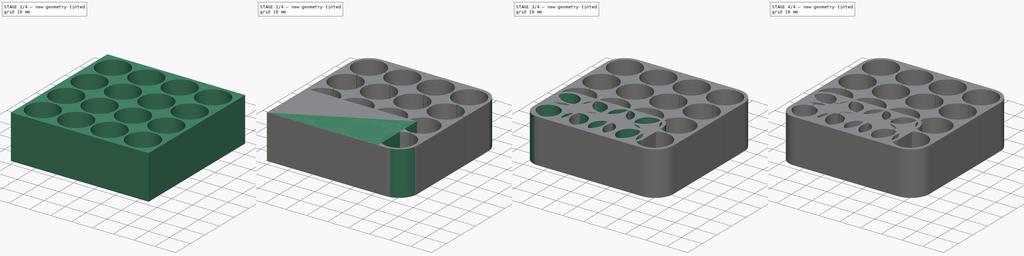
[diagram: build sequence overview — one tinted view per stage of 4, left to right]
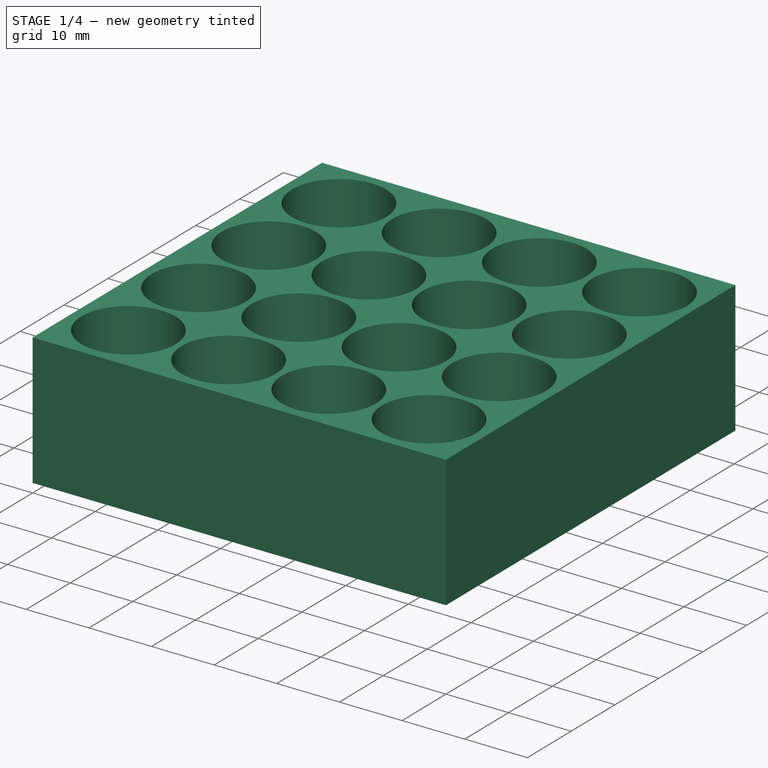
[diagram: stage 1 of 4 — iso view after this stage's code; geometry added in this stage tinted green]
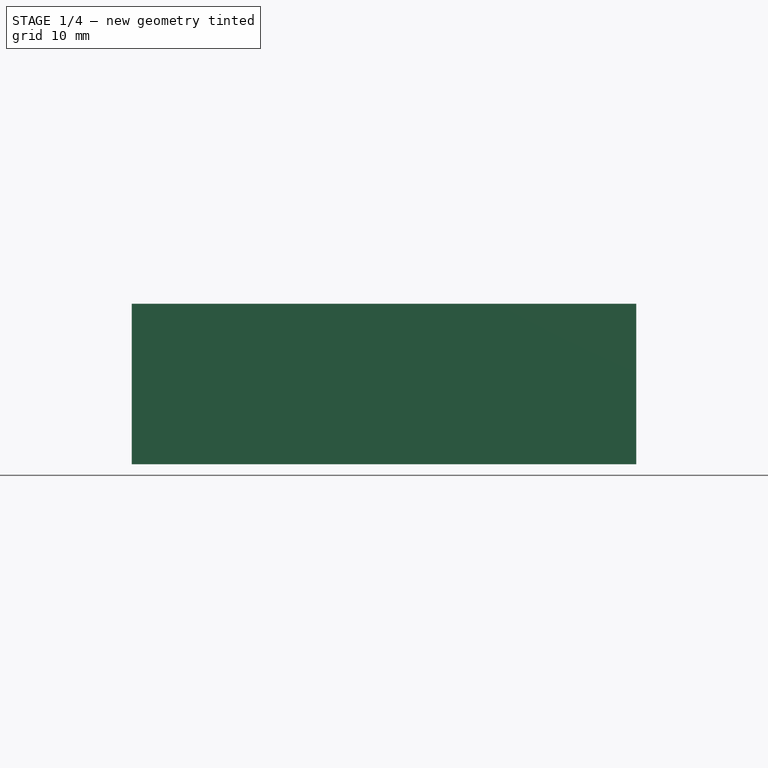
[diagram: stage 1 of 4 — front view after this stage's code; geometry added in this stage tinted green]
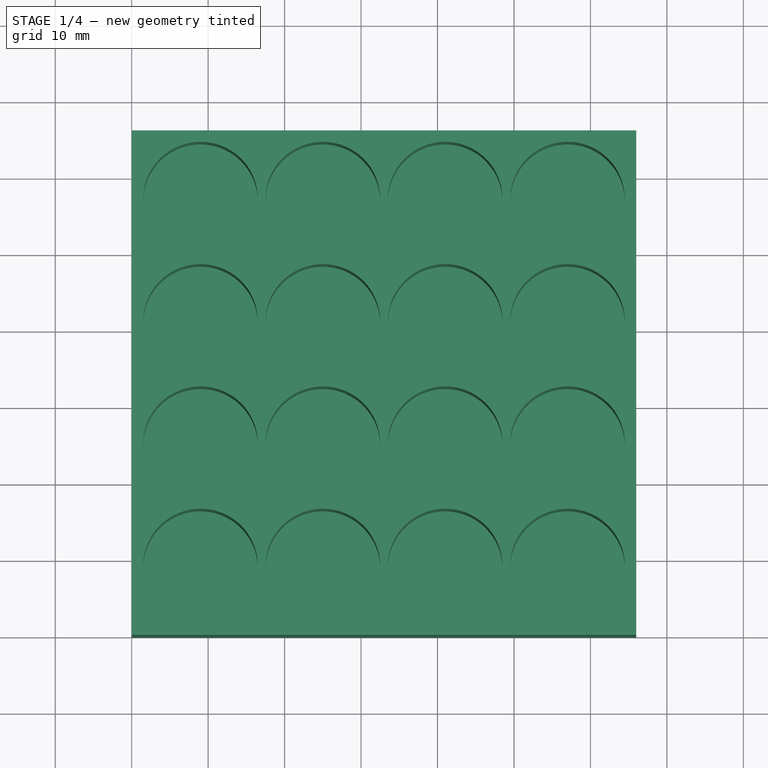
[diagram: stage 1 of 4 — top view after this stage's code; geometry added in this stage tinted green]
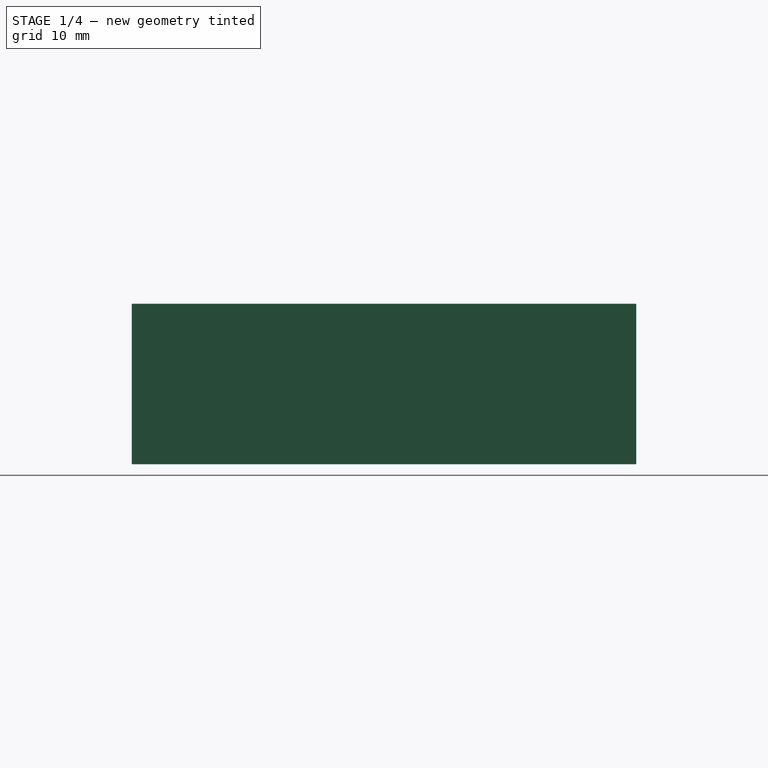
[diagram: stage 1 of 4 — right view after this stage's code; geometry added in this stage tinted green]
FCSTD DOCUMENT  (FreeCAD 2022.111R28429 (Git))
Label: battery stand
License: All rights reserved
LicenseURL: http://en.wikipedia.org/wiki/All_rights_reserved
objects: Sketcher::SketchObject×6, PartDesign::Pocket×5, PartDesign::LinearPattern×3, PartDesign::SubShapeBinder×2, PartDesign::Pad×2, PartDesign::Fillet×2, PartDesign::Body×2, Spreadsheet::Sheet×1, PartDesign::MultiTransform×1
note: 49 computed .brp shape members not serialized (recipe doc carries the construction recipe); baked Part::Feature solids carry a one-line shape summary decoded from their .brp

FEATURE [PartDesign::Body] Body  label="8 x AAA"
  AutoGroupSolids = false
  ExportMode = 0
  Group = -> [Sketch,Pad,Binder,Pocket,Fillet,Binder001,Sketch001,Pocket001,LinearPattern,Sketch002,Pocket002]
  Origin = -> Origin
  Tip = -> Pocket002
  TreeRank = 12
  _ExportChildren = -> [Sketch,Pad,Pocket,Fillet,Pocket001,LinearPattern,Pocket002]
  _GroupVersion = 1
FEATURE [Sketcher::SketchObject] Sketch003
  FullyConstrained = false
  MapMode = 2
  TreeRank = 38
  expr: Constraints[10] = <<dim>>.battery_diameter * <<dim>>.num_x + <<dim>>.spacing * (<<dim>>.num_x - 1) + 2 * <<dim>>.corner_distance - <<dim>>.battery_diameter
  expr: Constraints[11] = <<dim>>.battery_diameter * <<dim>>.num_y + <<dim>>.spacing * (<<dim>>.num_y - 1) + 2 * <<dim>>.corner_distance - <<dim>>.battery_diameter
  sketch-geometry (5):
    g0: LineSegment StartX=0 StartY=0 StartZ=0 EndX=66 EndY=0 EndZ=0
    g1: LineSegment StartX=66 StartY=0 StartZ=0 EndX=66 EndY=66 EndZ=0
    g2: LineSegment StartX=66 StartY=66 StartZ=0 EndX=0 EndY=66 EndZ=0
    g3: LineSegment StartX=0 StartY=66 StartZ=0 EndX=0 EndY=0 EndZ=0
    g4: Circle [constr] CenterX=10.8373 CenterY=10.6294 CenterZ=0 NormalX=0 NormalY=0 NormalZ=1 AngleXU=0 Radius=7.5
  constraints (12):
    c: Coincident(g0,g1)
    c: Coincident(g1,g2)
    c: Coincident(g2,g3)
    c: Coincident(g3,g0)
    c: Horizontal(g0)
    c: Horizontal(g2)
    c: Vertical(g1)
    c: Vertical(g3)
    c: Coincident(g0,g-1)
    c: Diameter(g4) = 15
    c: DistanceX(g0,g0) = 66
    c: DistanceY(g3,g3) = 66
FEATURE [Spreadsheet::Sheet] Spreadsheet  label="dim"
  PythonMode = false
  ShowCells = 0
  TreeRank = 39
  cells = A1=battery_diameter; B1(battery_diameter)==15mm; A2=spacing; B2(spacing)==1mm; A3=corner_distance; B3(corner_distance)==9mm; A4=corner_fillet; B4(corner_fillet)==9mm; A5=height; B5(height)==20mm; A6=bottom; B6(bottom)==1mm; A7=num_x; B7(num_x)=4; A8=num_y; B8(num_y)=4; A9=split; B9(split)==0.25mm
FEATURE [PartDesign::Pad] Pad001
  ClaimChildren = false
  Direction = (1,1,1)
  Fit = 0
  FitJoin = 0
  InnerFit = 0
  InnerFitJoin = 0
  InnerTaperAngle = 0
  InnerTaperAngleRev = 0
  Length = 20
  Length2 = 1
  Linearize = true
  NewSolid = false
  Profile = -> Sketch003
  Refine = true
  Suppress = false
  TreeRank = 40
  Type = 4
  _ProfileBasedVersion = 1
  expr: Length = <<dim>>.height
  expr: Length2 = <<dim>>.bottom
FEATURE [Sketcher::SketchObject] Sketch004
  FullyConstrained = true
  MapMode = 5
  Support = -> [XY_Plane001]
  TreeRank = 41
  expr: Constraints[0] = <<dim>>.battery_diameter
  expr: Constraints[1] = <<dim>>.corner_distance
  expr: Constraints[2] = <<dim>>.corner_distance
  sketch-geometry (1):
    g0: Circle CenterX=9 CenterY=9 CenterZ=0 NormalX=0 NormalY=0 NormalZ=1 AngleXU=0 Radius=7.5
  constraints (3):
    c: Diameter(g0) = 15
    c: DistanceX(g-1,g0) = 9
    c: DistanceY(g0) = 9
FEATURE [PartDesign::Pocket] Pocket003
  BaseFeature = -> Pad001
  ClaimChildren = false
  Fit = 0
  FitJoin = 0
  InnerFit = 0
  InnerFitJoin = 0
  InnerTaperAngle = 0
  InnerTaperAngleRev = 0
  Length = 5
  Length2 = 100
  Linearize = true
  NewSolid = false
  Profile = -> Sketch004
  Refine = true
  Reversed = true
  Suppress = false
  TreeRank = 42
  Type = 1
  _ProfileBasedVersion = 1
FEATURE [PartDesign::LinearPattern] LinearPattern001
  CopyShape = false
  Direction = -> Sketch004 [H_Axis]
  Length = 48
  NewSolid = false
  Occurrences = 4
  ParallelTransform = true
  Refine = true
  SubTransform = true
  Suppress = false
  TreeRank = 44
  expr: Length = (<<dim>>.battery_diameter + <<dim>>.spacing) * (<<dim>>.num_x - 1)
  expr: Occurrences = <<dim>>.num_x
FEATURE [PartDesign::LinearPattern] LinearPattern002
  CopyShape = false
  Direction = -> Sketch004 [V_Axis]
  Length = 48
  NewSolid = false
  Occurrences = 4
  ParallelTransform = true
  Refine = true
  SubTransform = true
  Suppress = false
  TreeRank = 45
  expr: Length = (<<dim>>.battery_diameter + <<dim>>.spacing) * (<<dim>>.num_y - 1)
  expr: Occurrences = <<dim>>.num_y
FEATURE [PartDesign::MultiTransform] MultiTransform
  BaseFeature = -> Pocket003
  CopyShape = false
  NewSolid = false
  OriginalSubs = -> [Pocket003]
  Originals = -> [Pocket003]
  ParallelTransform = true
  Refine = true
  SubTransform = true
  Suppress = false
  Transformations = -> [LinearPattern001,LinearPattern002]
  TreeRank = 43
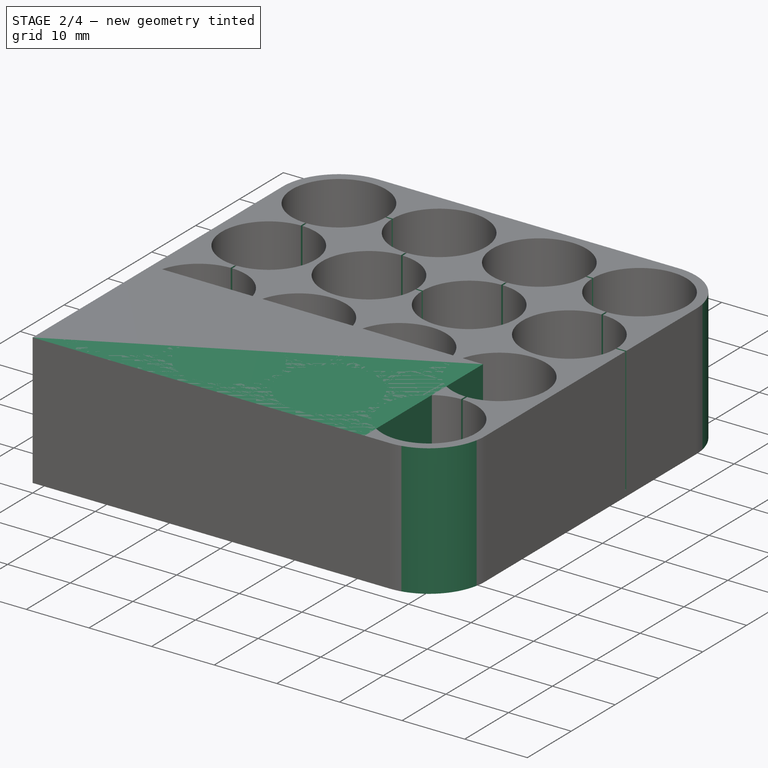
[diagram: stage 2 of 4 — iso view after this stage's code; geometry added in this stage tinted green]
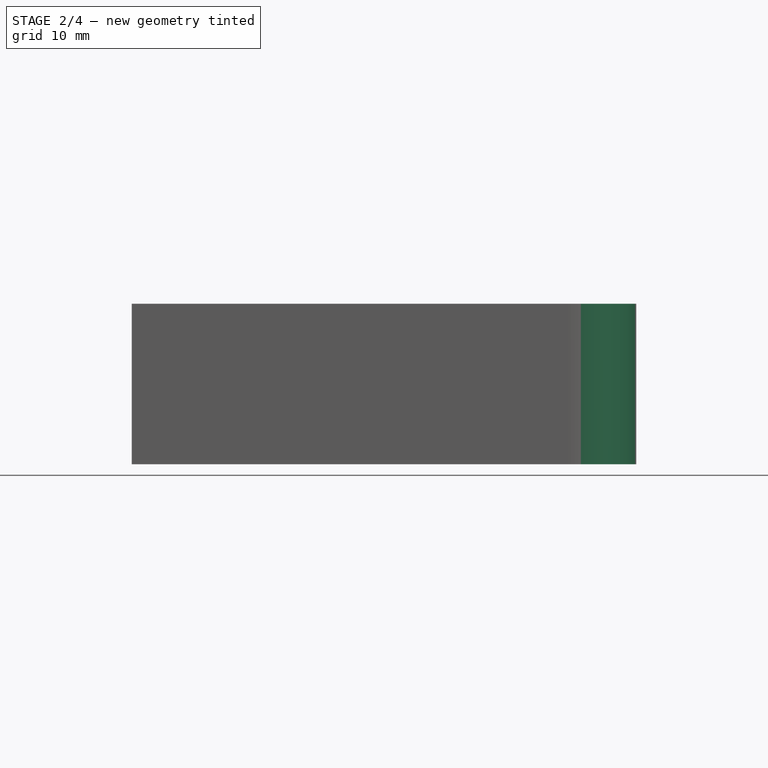
[diagram: stage 2 of 4 — front view after this stage's code; geometry added in this stage tinted green]
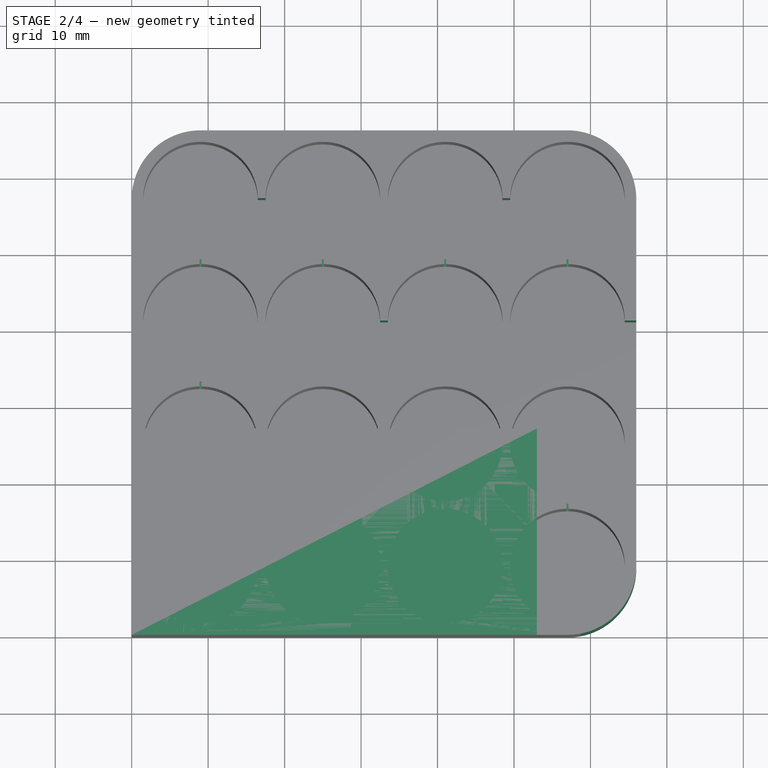
[diagram: stage 2 of 4 — top view after this stage's code; geometry added in this stage tinted green]
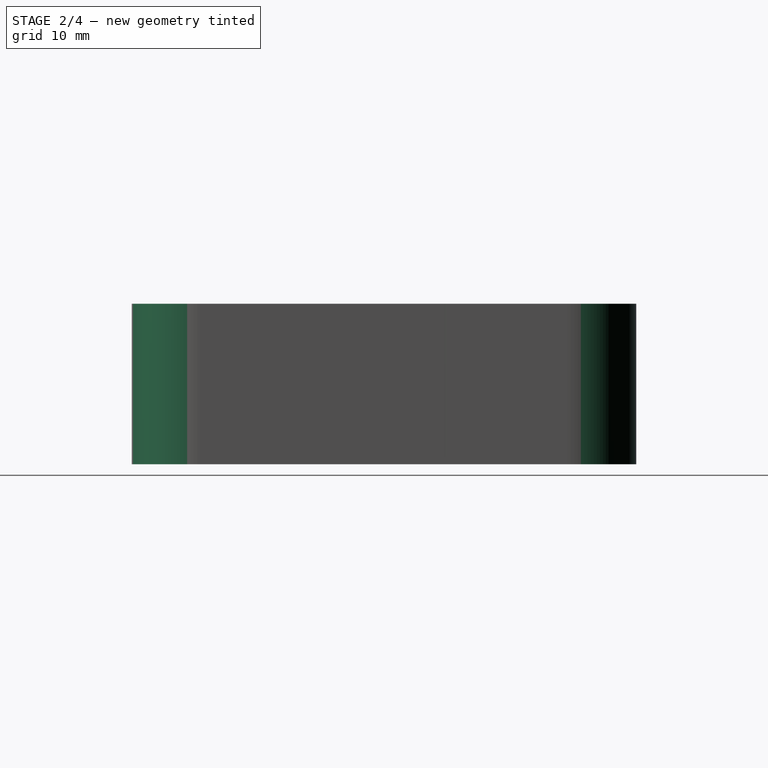
[diagram: stage 2 of 4 — right view after this stage's code; geometry added in this stage tinted green]
FEATURE [Sketcher::SketchObject] Sketch
  FullyConstrained = true
  TreeRank = 13
  sketch-geometry (16):
    g0: LineSegment StartX=0 StartY=0 StartZ=0 EndX=53 EndY=0 EndZ=0
    g1: LineSegment StartX=53 StartY=0 StartZ=0 EndX=53 EndY=27 EndZ=0
    g2: LineSegment StartX=53 StartY=27 StartZ=0 EndX=0 EndY=27 EndZ=0
    g3: LineSegment StartX=0 StartY=27 StartZ=0 EndX=0 EndY=0 EndZ=0
    g4: Circle CenterX=7 CenterY=7 CenterZ=0 NormalX=0 NormalY=0 NormalZ=1 AngleXU=0 Radius=5.5
    g5: Circle CenterX=20 CenterY=7 CenterZ=0 NormalX=0 NormalY=0 NormalZ=1 AngleXU=0 Radius=5.5
    g6: Circle CenterX=33 CenterY=7 CenterZ=0 NormalX=0 NormalY=0 NormalZ=1 AngleXU=0 Radius=5.5
    g7: Circle CenterX=46 CenterY=7 CenterZ=0 NormalX=0 NormalY=0 NormalZ=1 AngleXU=0 Radius=5.5
    g8: Circle CenterX=20 CenterY=20 CenterZ=0 NormalX=0 NormalY=0 NormalZ=1 AngleXU=0 Radius=5.5
    g9: Circle CenterX=33 CenterY=20 CenterZ=0 NormalX=0 NormalY=0 NormalZ=1 AngleXU=0 Radius=5.5
    g10: Circle CenterX=46 CenterY=20 CenterZ=0 NormalX=0 NormalY=0 NormalZ=1 AngleXU=0 Radius=5.5
    g11: Circle CenterX=7 CenterY=20 CenterZ=0 NormalX=0 NormalY=0 NormalZ=1 AngleXU=0 Radius=5.5
    g12: LineSegment [constr] StartX=7 StartY=20 StartZ=0 EndX=20 EndY=20 EndZ=0
    g13: LineSegment [constr] StartX=7 StartY=7 StartZ=0 EndX=7 EndY=20 EndZ=0
    g14: LineSegment [constr] StartX=33 StartY=20 StartZ=0 EndX=46 EndY=20 EndZ=0
    g15: LineSegment [constr] StartX=20 StartY=20 StartZ=0 EndX=33 EndY=20 EndZ=0
  constraints (43):
    c: Coincident(g0,g1)
    c: Coincident(g1,g2)
    c: Coincident(g2,g3)
    c: Coincident(g3,g0)
    c: Horizontal(g0)
    c: Horizontal(g2)
    c: Vertical(g1)
    c: Vertical(g3)
    c: Coincident(g0,g-1)
    c: Diameter(g4) = 11
    c: Equal(g4,g6) = 11
    c: Equal(g6,g7) = 11
    c: Equal(g4,g11) = 11
    c: Equal(g11,g9) = 11
    c: Equal(g9,g10) = 11
    c: Horizontal(g4,g5)
    c: Horizontal(g5,g6)
    c: Horizontal(g6,g7)
    c: Horizontal(g11,g8)
    c: Horizontal(g8,g9)
    c: Horizontal(g9,g10)
    c: Vertical(g11,g4)
    c: Vertical(g8,g5)
    c: Vertical(g9,g6)
    c: Vertical(g10,g7)
    c: Equal(g4,g5)
    c: Equal(g9,g8)
    c: Coincident(g13,g12)
    c: Coincident(g12,g11)
    c: Coincident(g14,g9)
    c: Coincident(g15,g8)
    c: Coincident(g15,g9)
    c: Coincident(g10,g14)
    c: Coincident(g8,g12)
    c: Equal(g12,g13)
    c: Equal(g13,g15)
    c: Equal(g15,g14)
    c: DistanceY(g13,g13) = 13
    c: Coincident(g4,g13)
    c: DistanceY(g0,g4) = 7
    c: DistanceX(g0,g4) = 7
    c: DistanceX(g7,g0) = 7
    c: DistanceY(g10,g1) = 7
FEATURE [PartDesign::SubShapeBinder] Binder  label="Binder(Sketch)..."
  BindCopyOnChange = 0
  BindMode = 0
  ClaimChildren = false
  Context = -> Body [Binder.]
  FillStyle = 0
  Fuse = false
  MakeFace = true
  PartialLoad = false
  Relative = true
  Support = -> [Sketch[Edge1,Edge2,Edge3,Edge4]]
  TreeRank = 15
  _Version = 8
FEATURE [PartDesign::Pad] Pad
  ClaimChildren = false
  Direction = (1,1,1)
  Fit = 0
  FitJoin = 0
  InnerFit = 0
  InnerFitJoin = 0
  InnerTaperAngle = 0
  InnerTaperAngleRev = 0
  Length = 20
  Length2 = 1
  Linearize = true
  NewSolid = false
  Profile = -> Binder
  Refine = true
  Suppress = false
  TreeRank = 16
  Type = 4
  _ProfileBasedVersion = 1
FEATURE [PartDesign::Fillet] Fillet001
  Base = -> MultiTransform [Edge1,Edge2,Edge8,Edge5]
  BaseFeature = -> MultiTransform
  NewSolid = false
  Radius = 9
  Refine = true
  SupportTransform = false
  Suppress = false
  TreeRank = 46
  expr: Radius = <<dim>>.corner_fillet
FEATURE [Sketcher::SketchObject] Sketch005
  ExternalGeometry = -> [Fillet001]
  FullyConstrained = false
  MapMode = 5
  Placement = pos=(0,0,20) rot=(0,0,1;0rad)
  Support = -> [Fillet001]
  TreeRank = 47
  expr: Constraints[11] = <<dim>>.split
  expr: Constraints[12] = <<dim>>.battery_diameter / 2 * 0.8
  expr: Constraints[132] = <<dim>>.battery_diameter / 2
  sketch-geometry (67):
    g0: LineSegment StartX=63 StartY=41.125 StartZ=0 EndX=70.5 EndY=41.125 EndZ=0
    g1: LineSegment StartX=70.5 StartY=41.125 StartZ=0 EndX=70.5 EndY=40.875 EndZ=0
    g2: LineSegment StartX=70.5 StartY=40.875 StartZ=0 EndX=63 EndY=40.875 EndZ=0
    g3: LineSegment StartX=63 StartY=40.875 StartZ=0 EndX=63 EndY=41.125 EndZ=0
    g4: LineSegment [constr] StartX=57 StartY=41 StartZ=0 EndX=63 EndY=41 EndZ=0
    g5: LineSegment StartX=43.5 StartY=57.125 StartZ=0 EndX=51 EndY=57.125 EndZ=0
    g6: LineSegment StartX=51 StartY=57.125 StartZ=0 EndX=51 EndY=56.875 EndZ=0
    g7: LineSegment StartX=51 StartY=56.875 StartZ=0 EndX=43.5 EndY=56.875 EndZ=0
    g8: LineSegment StartX=43.5 StartY=56.875 StartZ=0 EndX=43.5 EndY=57.125 EndZ=0
    g9: LineSegment StartX=40.875 StartY=51 StartZ=0 EndX=41.125 EndY=51 EndZ=0
    g10: LineSegment StartX=41.125 StartY=51 StartZ=0 EndX=41.125 EndY=43.5 EndZ=0
    g11: LineSegment StartX=41.125 StartY=43.5 StartZ=0 EndX=40.875 EndY=43.5 EndZ=0
    g12: LineSegment StartX=40.875 StartY=43.5 StartZ=0 EndX=40.875 EndY=51 EndZ=0
    g13: LineSegment StartX=27.5 StartY=41.125 StartZ=0 EndX=35 EndY=41.125 EndZ=0
    g14: LineSegment StartX=35 StartY=41.125 StartZ=0 EndX=35 EndY=40.875 EndZ=0
    g15: LineSegment StartX=35 StartY=40.875 StartZ=0 EndX=27.5 EndY=40.875 EndZ=0
    g16: LineSegment StartX=27.5 StartY=40.875 StartZ=0 EndX=27.5 EndY=41.125 EndZ=0
    g17: LineSegment StartX=24.875 StartY=54.5 StartZ=0 EndX=25.125 EndY=54.5 EndZ=0
    g18: LineSegment StartX=25.125 StartY=54.5 StartZ=0 EndX=25.125 EndY=47 EndZ=0
    g19: LineSegment StartX=25.125 StartY=47 StartZ=0 EndX=24.875 EndY=47 EndZ=0
    g20: LineSegment StartX=24.875 StartY=47 StartZ=0 EndX=24.875 EndY=54.5 EndZ=0
    g21: LineSegment StartX=11.5 StartY=57.125 StartZ=0 EndX=19 EndY=57.125 EndZ=0
    g22: LineSegment StartX=19 StartY=57.125 StartZ=0 EndX=19 EndY=56.875 EndZ=0
    g23: LineSegment StartX=19 StartY=56.875 StartZ=0 EndX=11.5 EndY=56.875 EndZ=0
    g24: LineSegment StartX=11.5 StartY=56.875 StartZ=0 EndX=11.5 EndY=57.125 EndZ=0
    g25: LineSegment StartX=8.875 StartY=54.5 StartZ=0 EndX=9.125 EndY=54.5 EndZ=0
    g26: LineSegment StartX=9.125 StartY=54.5 StartZ=0 EndX=9.125 EndY=11.5 EndZ=0
    g27: LineSegment StartX=9.125 StartY=11.5 StartZ=0 EndX=8.875 EndY=11.5 EndZ=0
    g28: LineSegment StartX=8.875 StartY=11.5 StartZ=0 EndX=8.875 EndY=54.5 EndZ=0
    g29: LineSegment StartX=11.5 StartY=9.125 StartZ=0 EndX=19 EndY=9.125 EndZ=0
    g30: LineSegment StartX=19 StartY=9.125 StartZ=0 EndX=19 EndY=8.875 EndZ=0
    g31: LineSegment StartX=19 StartY=8.875 StartZ=0 EndX=11.5 EndY=8.875 EndZ=0
    g32: LineSegment StartX=11.5 StartY=8.875 StartZ=0 EndX=11.5 EndY=9.125 EndZ=0
    g33: LineSegment StartX=24.875 StartY=11.5 StartZ=0 EndX=25.125 EndY=11.5 EndZ=0
    g34: LineSegment StartX=25.125 StartY=11.5 StartZ=0 EndX=25.125 EndY=19 EndZ=0
    g35: LineSegment StartX=25.125 StartY=19 StartZ=0 EndX=24.875 EndY=19 EndZ=0
    g36: LineSegment StartX=24.875 StartY=19 StartZ=0 EndX=24.875 EndY=11.5 EndZ=0
    g37: LineSegment StartX=27.5 StartY=25.125 StartZ=0 EndX=35 EndY=25.125 EndZ=0
    g38: LineSegment StartX=35 StartY=25.125 StartZ=0 EndX=35 EndY=24.875 EndZ=0
    g39: LineSegment StartX=35 StartY=24.875 StartZ=0 EndX=27.5 EndY=24.875 EndZ=0
    g40: LineSegment StartX=27.5 StartY=24.875 StartZ=0 EndX=27.5 EndY=25.125 EndZ=0
    g41: LineSegment StartX=40.875 StartY=19 StartZ=0 EndX=41.125 EndY=19 EndZ=0
    g42: LineSegment StartX=41.125 StartY=19 StartZ=0 EndX=41.125 EndY=11.5 EndZ=0
    g43: LineSegment StartX=41.125 StartY=11.5 StartZ=0 EndX=40.875 EndY=11.5 EndZ=0
    g44: LineSegment StartX=40.875 StartY=11.5 StartZ=0 EndX=40.875 EndY=19 EndZ=0
    g45: LineSegment StartX=43.5 StartY=9.125 StartZ=0 EndX=51 EndY=9.125 EndZ=0
    g46: LineSegment StartX=51 StartY=9.125 StartZ=0 EndX=51 EndY=8.875 EndZ=0
    g47: LineSegment StartX=51 StartY=8.875 StartZ=0 EndX=43.5 EndY=8.875 EndZ=0
    g48: LineSegment StartX=43.5 StartY=8.875 StartZ=0 EndX=43.5 EndY=9.125 EndZ=0
    g49: LineSegment StartX=56.875 StartY=11.5 StartZ=0 EndX=57.125 EndY=11.5 EndZ=0
    g50: LineSegment StartX=57.125 StartY=11.5 StartZ=0 EndX=57.125 EndY=19 EndZ=0
    g51: LineSegment StartX=57.125 StartY=19 StartZ=0 EndX=56.875 EndY=19 EndZ=0
    g52: LineSegment StartX=56.875 StartY=19 StartZ=0 EndX=56.875 EndY=11.5 EndZ=0
    g53: LineSegment [constr] StartX=57 StartY=41 StartZ=0 EndX=57 EndY=47 EndZ=0
    g54: LineSegment [constr] StartX=57 StartY=57 StartZ=0 EndX=51 EndY=57 EndZ=0
    g55: LineSegment [constr] StartX=41 StartY=57 StartZ=0 EndX=41 EndY=51 EndZ=0
    g56: LineSegment [constr] StartX=41 StartY=41 StartZ=0 EndX=35 EndY=41 EndZ=0
    g57: LineSegment [constr] StartX=25 StartY=41 StartZ=0 EndX=25 EndY=47 EndZ=0
    g58: LineSegment [constr] StartX=25 StartY=57 StartZ=0 EndX=19 EndY=57 EndZ=0
    g59: LineSegment [constr] StartX=9 StartY=9 StartZ=0 EndX=9 EndY=11.5 EndZ=0
    g60: LineSegment [constr] StartX=9 StartY=9 StartZ=0 EndX=11.5 EndY=9 EndZ=0
    g61: LineSegment [constr] StartX=25 StartY=25 StartZ=0 EndX=27.5 EndY=25 EndZ=0
    g62: LineSegment [constr] StartX=25 StartY=25 StartZ=0 EndX=25 EndY=19 EndZ=0
    g63: LineSegment StartX=56.875 StartY=47 StartZ=0 EndX=57.125 EndY=47 EndZ=0
    g64: LineSegment StartX=57.125 StartY=47 StartZ=0 EndX=57.125 EndY=54.5 EndZ=0
    g65: LineSegment StartX=57.125 StartY=54.5 StartZ=0 EndX=56.875 EndY=54.5 EndZ=0
    g66: LineSegment StartX=56.875 StartY=54.5 StartZ=0 EndX=56.875 EndY=47 EndZ=0
  constraints (190):
    c: Coincident(g0,g1)
    c: Coincident(g1,g2)
    c: Coincident(g2,g3)
    c: Coincident(g3,g0)
    c: Horizontal(g0)
    c: Horizontal(g2)
    c: Vertical(g1)
    c: Vertical(g3)
    c: Coincident(g4,g-4)
    c: Horizontal(g4)
    c: Symmetric(g0,g2,g4)
    c: DistanceY(g1,g1) = 0.25
    c: DistanceX(g4,g4) = 6
    c: Coincident(g5,g6)
    c: Coincident(g6,g7)
    c: Coincident(g7,g8)
    c: Coincident(g8,g5)
    c: Horizontal(g5)
    c: Horizontal(g7)
    c: Vertical(g6)
    c: Vertical(g8)
    c: Equal(g6,g1)
    c: Coincident(g9,g10)
    c: Coincident(g10,g11)
    c: Coincident(g11,g12)
    c: Coincident(g12,g9)
    c: Horizontal(g9)
    c: Horizontal(g11)
    c: Vertical(g10)
    c: Vertical(g12)
    c: Coincident(g13,g14)
    c: Coincident(g14,g15)
    c: Coincident(g15,g16)
    c: Coincident(g16,g13)
    c: Horizontal(g13)
    c: Horizontal(g15)
    c: Vertical(g14)
    c: Vertical(g16)
    c: Coincident(g17,g18)
    c: Coincident(g18,g19)
    c: Coincident(g19,g20)
    c: Coincident(g20,g17)
    c: Horizontal(g17)
    c: Horizontal(g19)
    c: Vertical(g18)
    c: Vertical(g20)
    c: Coincident(g21,g22)
    c: Coincident(g22,g23)
    c: Coincident(g23,g24)
    c: Coincident(g24,g21)
    c: Horizontal(g21)
    c: Horizontal(g23)
    c: Vertical(g22)
    c: Vertical(g24)
    c: Coincident(g25,g26)
    c: Coincident(g26,g27)
    c: Coincident(g27,g28)
    c: Coincident(g28,g25)
    c: Horizontal(g25)
    c: Horizontal(g27)
    c: Vertical(g26)
    c: Vertical(g28)
    c: Coincident(g29,g30)
    c: Coincident(g30,g31)
    c: Coincident(g31,g32)
    c: Coincident(g32,g29)
    c: Horizontal(g29)
    c: Horizontal(g31)
    c: Vertical(g30)
    c: Vertical(g32)
    c: Coincident(g33,g34)
    c: Coincident(g34,g35)
    c: Coincident(g35,g36)
    c: Coincident(g36,g33)
    c: Horizontal(g33)
    c: Horizontal(g35)
    c: Vertical(g34)
    c: Vertical(g36)
    c: Coincident(g37,g38)
    c: Coincident(g38,g39)
    c: Coincident(g39,g40)
    c: Coincident(g40,g37)
    c: Horizontal(g37)
    c: Horizontal(g39)
    c: Vertical(g38)
    c: Vertical(g40)
    c: Coincident(g41,g42)
    c: Coincident(g42,g43)
    c: Coincident(g43,g44)
    c: Coincident(g44,g41)
    c: Horizontal(g41)
    c: Horizontal(g43)
    c: Vertical(g42)
    c: Vertical(g44)
    c: Coincident(g45,g46)
    c: Coincident(g46,g47)
    c: Coincident(g47,g48)
    c: Coincident(g48,g45)
    c: Horizontal(g45)
    c: Horizontal(g47)
    c: Vertical(g46)
    c: Vertical(g48)
    c: Coincident(g49,g50)
    c: Coincident(g50,g51)
    c: Coincident(g51,g52)
    c: Coincident(g52,g49)
    c: Horizontal(g49)
    c: Horizontal(g51)
    c: Vertical(g50)
    c: Vertical(g52)
    c: Equal(g49,g46)
    c: Equal(g46,g43)
    c: Equal(g43,g38)
    c: Equal(g38,g35)
    c: Equal(g35,g30)
    c: Equal(g30,g27)
    c: Equal(g27,g22)
    c: Equal(g22,g17)
    c: Equal(g9,g1)
    c: Equal(g5,g10)
    c: Equal(g10,g13)
    c: Equal(g13,g18)
    c: Equal(g18,g21)
    c: Equal(g21,g31)
    c: Equal(g31,g34)
    c: Equal(g34,g39)
    c: Equal(g39,g42)
    c: Equal(g42,g45)
    c: Equal(g45,g50)
    c: Coincident(g53,g-4)
    c: Vertical(g53)
    c: Equal(g4,g53)
    c: DistanceX(g2,g2) = 7.5
    c: Coincident(g54,g-3)
    c: Horizontal(g54)
    c: Symmetric(g5,g6,g54)
    c: Equal(g54,g53)
    c: Coincident(g55,g-5)
    c: Vertical(g55)
    c: Equal(g55,g4)
    c: Symmetric(g9,g9,g55)
    c: Coincident(g56,g-6)
    c: Coincident(g57,g-8)
    c: Vertical(g57)
    c: Coincident(g58,g-7)
    c: Horizontal(g56)
    c: Equal(g4,g56)
    c: Equal(g56,g57)
    c: Equal(g57,g58)
    c: Horizontal(g58)
    c: Symmetric(g22,g21,g58)
    c: Symmetric(g14,g13,g56)
    c: Symmetric(g18,g19,g57)
    c: Equal(g1,g14)
    c: Equal(g14,g19)
    c: Vertical(g37,g14)
    c: Vertical(g41,g11)
    c: Vertical(g34,g18)
    c: Vertical(g29,g22)
    c: Vertical(g45,g6)
    c: Horizontal(g29,g45)
    c: Coincident(g59,g-10)
    c: Coincident(g60,g-10)
    c: Symmetric(g31,g29,g60)
    c: Symmetric(g26,g27,g59)
    c: Vertical(g59)
    c: Horizontal(g60)
    c: Equal(g59,g60)
    c: Horizontal(g25,g17)
    c: Horizontal(g34,g41)
    c: Horizontal(g41,g51)
    c: Coincident(g61,g-11)
    c: Coincident(g62,g-11)
    c: PointOnObject(g62,g35)
    c: Vertical(g62)
    c: Symmetric(g39,g37,g61)
    c: Horizontal(g61)
    c: Equal(g62,g56)
    c: Coincident(g63,g64)
    c: Coincident(g64,g65)
    c: Coincident(g65,g66)
    c: Coincident(g66,g63)
    c: Horizontal(g63)
    c: Horizontal(g65)
    c: Vertical(g64)
    c: Vertical(g66)
    c: Symmetric(g63,g63,g53)
    c: Equal(g3,g65)
    c: Equal(g64,g0)
    c: Equal(g5,g64)
FEATURE [PartDesign::Pocket] Pocket004
  BaseFeature = -> Fillet001
  ClaimChildren = false
  Fit = 0
  FitJoin = 0
  InnerFit = 0
  InnerFitJoin = 0
  InnerTaperAngle = 0
  InnerTaperAngleRev = 0
  Length = 0
  Length2 = 100
  Linearize = true
  NewSolid = false
  Profile = -> Sketch005
  Refine = true
  Suppress = false
  TreeRank = 48
  Type = 3
  UpToFace = -> Fillet001 [Face40]
  _ProfileBasedVersion = 1
FEATURE [PartDesign::Body] Body001  label="16 x AA"
  AutoGroupSolids = false
  ExportMode = 0
  Group = -> [Sketch003,Pad001,Sketch004,Pocket003,MultiTransform,Fillet001,LinearPattern001,LinearPattern002,Sketch005,Pocket004]
  Origin = -> Origin001
  Tip = -> Pocket004
  TreeRank = 37
  _ExportChildren = -> [Pad001,Pocket003,MultiTransform,Fillet001,Pocket004]
  _GroupVersion = 1
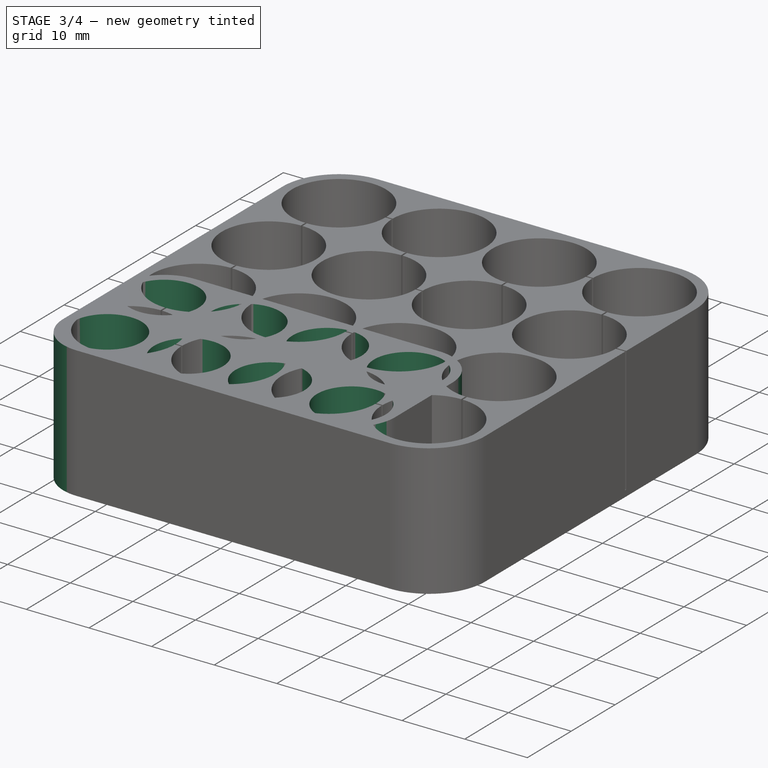
[diagram: stage 3 of 4 — iso view after this stage's code; geometry added in this stage tinted green]
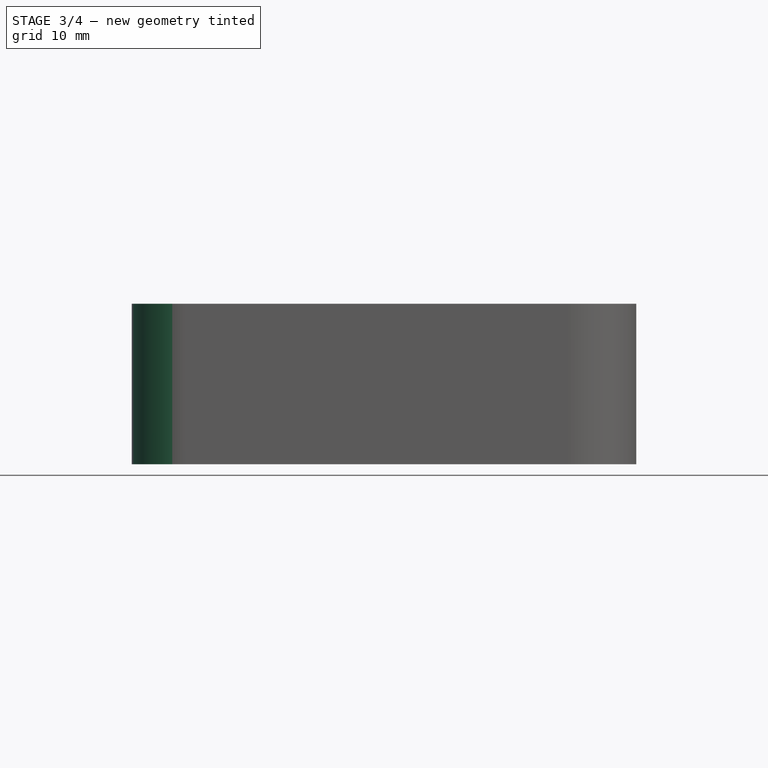
[diagram: stage 3 of 4 — front view after this stage's code; geometry added in this stage tinted green]
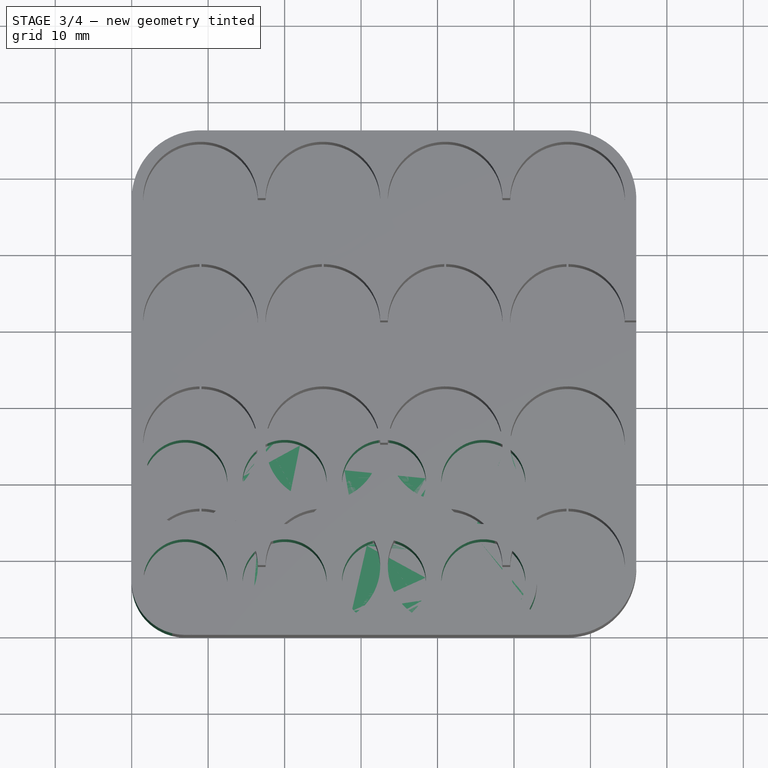
[diagram: stage 3 of 4 — top view after this stage's code; geometry added in this stage tinted green]
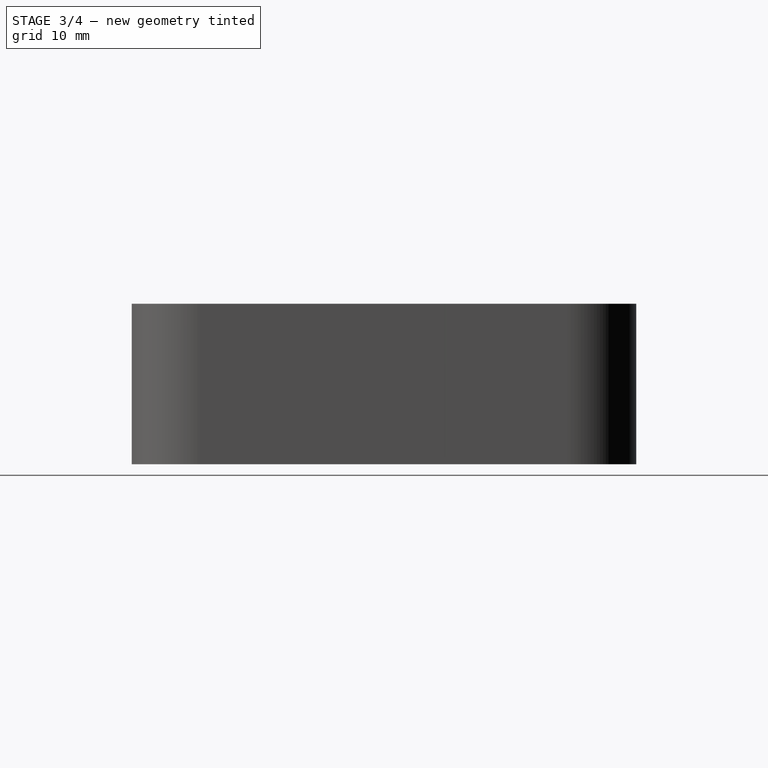
[diagram: stage 3 of 4 — right view after this stage's code; geometry added in this stage tinted green]
FEATURE [PartDesign::SubShapeBinder] Binder001  label="Binder001(Sketch)..."
  BindCopyOnChange = 0
  BindMode = 0
  ClaimChildren = false
  Context = -> Body [Binder001.]
  FillStyle = 0
  Fuse = false
  MakeFace = true
  PartialLoad = false
  Relative = true
  Support = -> [Sketch[Edge12,Edge9,Edge10,Edge11,Edge8,Edge7,Edge6,Edge5]]
  TreeRank = 18
  _Version = 8
FEATURE [PartDesign::Pocket] Pocket
  BaseFeature = -> Pad
  ClaimChildren = false
  Fit = 0
  FitJoin = 0
  InnerFit = 0
  InnerFitJoin = 0
  InnerTaperAngle = 0
  InnerTaperAngleRev = 0
  Length = 5
  Length2 = 100
  Linearize = true
  NewSolid = false
  Profile = -> Binder001
  Refine = true
  Reversed = true
  Suppress = false
  TreeRank = 19
  Type = 1
  _ProfileBasedVersion = 1
FEATURE [PartDesign::Fillet] Fillet
  Base = -> Pocket [Edge1,Edge5,Edge2,Edge8]
  BaseFeature = -> Pocket
  NewSolid = false
  Radius = 7
  Refine = true
  SupportTransform = false
  Suppress = false
  TreeRank = 20
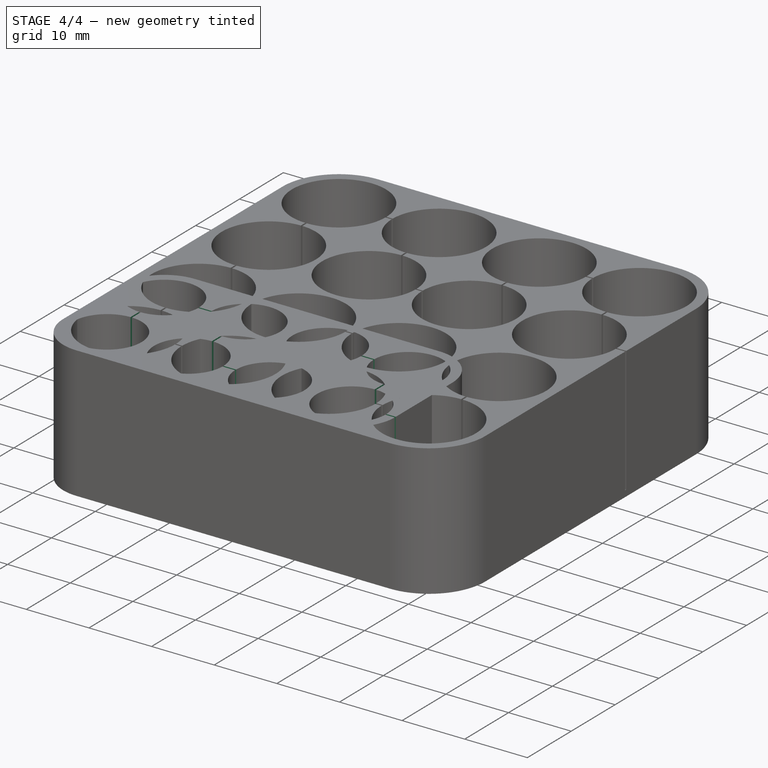
[diagram: stage 4 of 4 — iso view after this stage's code; geometry added in this stage tinted green]
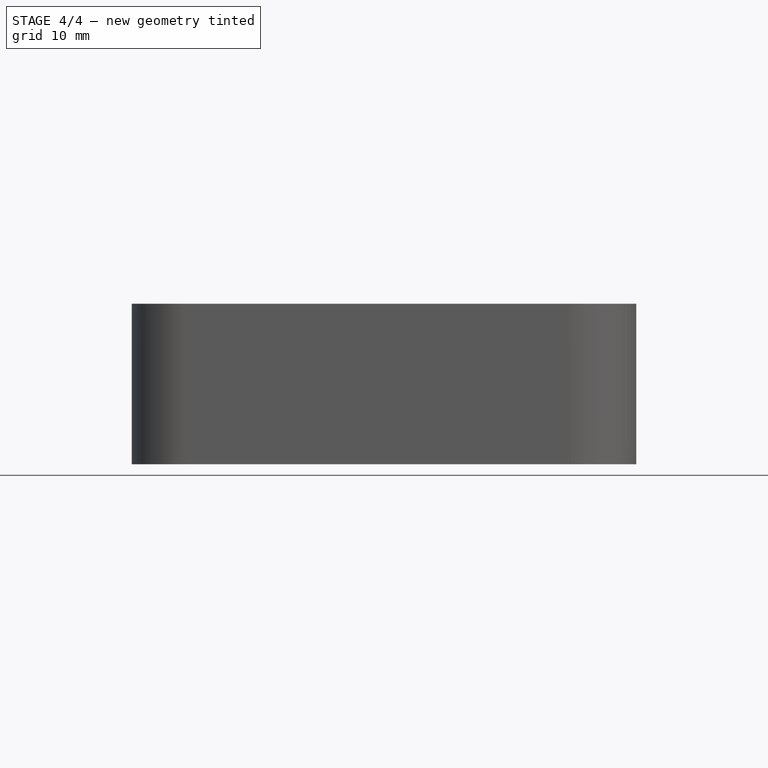
[diagram: stage 4 of 4 — front view after this stage's code; geometry added in this stage tinted green]
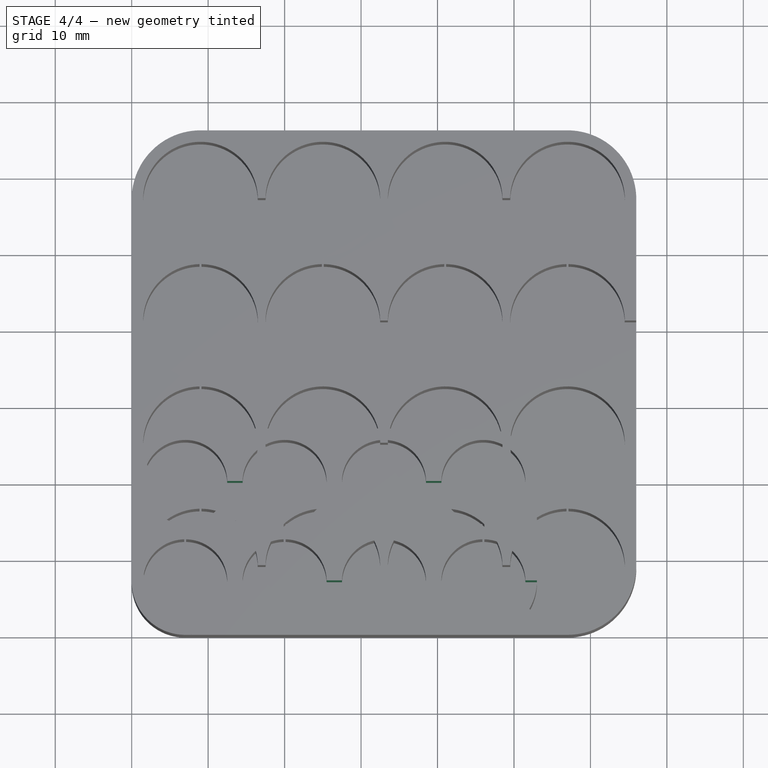
[diagram: stage 4 of 4 — top view after this stage's code; geometry added in this stage tinted green]
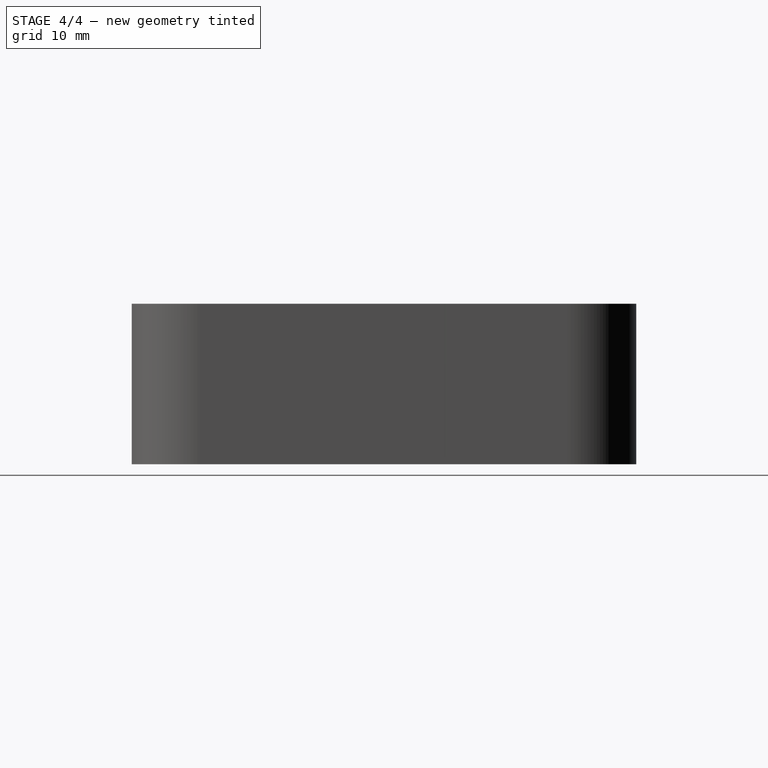
[diagram: stage 4 of 4 — right view after this stage's code; geometry added in this stage tinted green]
FEATURE [Sketcher::SketchObject] Sketch001
  ExternalGeometry = -> [Fillet]
  FullyConstrained = true
  MapMode = 5
  Placement = pos=(0,0,20) rot=(0,0,1;0rad)
  Support = -> [Fillet]
  TreeRank = 21
  sketch-geometry (6):
    g0: LineSegment StartX=6.875 StartY=16 StartZ=0 EndX=7.125 EndY=16 EndZ=0
    g1: LineSegment StartX=7.125 StartY=16 StartZ=0 EndX=7.125 EndY=11 EndZ=0
    g2: LineSegment StartX=7.125 StartY=11 StartZ=0 EndX=6.875 EndY=11 EndZ=0
    g3: LineSegment StartX=6.875 StartY=11 StartZ=0 EndX=6.875 EndY=16 EndZ=0
    g4: LineSegment [constr] StartX=7 StartY=20 StartZ=0 EndX=7 EndY=13.5 EndZ=0
    g5: LineSegment [constr] StartX=7 StartY=13.5 StartZ=0 EndX=7 EndY=7 EndZ=0
  constraints (15):
    c: Coincident(g0,g1)
    c: Coincident(g1,g2)
    c: Coincident(g2,g3)
    c: Horizontal(g0)
    c: Horizontal(g2)
    c: Vertical(g3)
    c: Coincident(g4,g-5)
    c: Coincident(g5,g4)
    c: Coincident(g5,g-4)
    c: Equal(g5,g4)
    c: Symmetric(g0,g0,g4)
    c: DistanceY(g1,g1) = 5
    c: Symmetric(g0,g1,g4)
    c: Coincident(g3,g0)
    c: DistanceX(g0,g0) = 0.25
FEATURE [PartDesign::Pocket] Pocket001
  BaseFeature = -> Fillet
  ClaimChildren = false
  Fit = 0
  FitJoin = 0
  InnerFit = 0
  InnerFitJoin = 0
  InnerTaperAngle = 0
  InnerTaperAngleRev = 0
  Length = 0
  Length2 = 100
  Linearize = true
  NewSolid = false
  Profile = -> Sketch001
  Refine = true
  Suppress = false
  TreeRank = 22
  Type = 3
  UpToFace = -> Fillet [Face23]
  _ProfileBasedVersion = 1
FEATURE [PartDesign::LinearPattern] LinearPattern
  BaseFeature = -> Pocket001
  CopyShape = false
  Direction = -> Sketch001 [H_Axis]
  Length = 39
  NewSolid = false
  Occurrences = 4
  OriginalSubs = -> [Pocket001]
  Originals = -> [Pocket001]
  ParallelTransform = true
  Refine = true
  SubTransform = true
  Suppress = false
  TreeRank = 23
FEATURE [Sketcher::SketchObject] Sketch002
  ExternalGeometry = -> [LinearPattern]
  FullyConstrained = true
  MapMode = 5
  Placement = pos=(0,0,20) rot=(0,0,1;0rad)
  Support = -> [LinearPattern]
  TreeRank = 24
  sketch-geometry (18):
    g0: LineSegment StartX=35.5 StartY=20.125 StartZ=0 EndX=43.5 EndY=20.125 EndZ=0
    g1: LineSegment StartX=43.5 StartY=20.125 StartZ=0 EndX=43.5 EndY=19.875 EndZ=0
    g2: LineSegment StartX=43.5 StartY=19.875 StartZ=0 EndX=35.5 EndY=19.875 EndZ=0
    g3: LineSegment StartX=35.5 StartY=19.875 StartZ=0 EndX=35.5 EndY=20.125 EndZ=0
    g4: LineSegment StartX=22.5 StartY=7.125 StartZ=0 EndX=30.5 EndY=7.125 EndZ=0
    g5: LineSegment StartX=30.5 StartY=7.125 StartZ=0 EndX=30.5 EndY=6.875 EndZ=0
    g6: LineSegment StartX=30.5 StartY=6.875 StartZ=0 EndX=22.5 EndY=6.875 EndZ=0
    g7: LineSegment StartX=22.5 StartY=6.875 StartZ=0 EndX=22.5 EndY=7.125 EndZ=0
    g8: LineSegment [constr] StartX=33 StartY=20 StartZ=0 EndX=39.5 EndY=20 EndZ=0
    g9: LineSegment [constr] StartX=39.5 StartY=20 StartZ=0 EndX=46 EndY=20 EndZ=0
    g10: LineSegment StartX=48.5 StartY=7.125 StartZ=0 EndX=56.5 EndY=7.125 EndZ=0
    g11: LineSegment StartX=56.5 StartY=7.125 StartZ=0 EndX=56.5 EndY=6.875 EndZ=0
    g12: LineSegment StartX=56.5 StartY=6.875 StartZ=0 EndX=48.5 EndY=6.875 EndZ=0
    g13: LineSegment StartX=48.5 StartY=6.875 StartZ=0 EndX=48.5 EndY=7.125 EndZ=0
    g14: LineSegment StartX=9.5 StartY=20.125 StartZ=0 EndX=17.5 EndY=20.125 EndZ=0
    g15: LineSegment StartX=17.5 StartY=20.125 StartZ=0 EndX=17.5 EndY=19.875 EndZ=0
    g16: LineSegment StartX=17.5 StartY=19.875 StartZ=0 EndX=9.5 EndY=19.875 EndZ=0
    g17: LineSegment StartX=9.5 StartY=19.875 StartZ=0 EndX=9.5 EndY=20.125 EndZ=0
  constraints (52):
    c: Coincident(g0,g1)
    c: Coincident(g1,g2)
    c: Coincident(g2,g3)
    c: Coincident(g3,g0)
    c: Horizontal(g0)
    c: Horizontal(g2)
    c: Vertical(g1)
    c: Vertical(g3)
    c: Coincident(g4,g5)
    c: Coincident(g5,g6)
    c: Coincident(g6,g7)
    c: Coincident(g7,g4)
    c: Horizontal(g4)
    c: Horizontal(g6)
    c: Vertical(g5)
    c: Vertical(g7)
    c: Equal(g3,g7)
    c: Equal(g0,g4)
    c: DistanceX(g6,g6) = 8
    c: DistanceY(g5,g5) = 0.25
    c: Coincident(g8,g-4)
    c: Horizontal(g8)
    c: Coincident(g9,g8)
    c: Coincident(g9,g-6)
    c: Equal(g9,g8)
    c: Symmetric(g0,g1,g8)
    c: DistanceY(g4,g0) = 13
    c: DistanceX(g4,g0) = 13
    c: Coincident(g10,g11)
    c: Coincident(g11,g12)
    c: Coincident(g12,g13)
    c: Coincident(g13,g10)
    c: Horizontal(g10)
    c: Horizontal(g12)
    c: Vertical(g11)
    c: Vertical(g13)
    c: Equal(g6,g12) = 8
    c: Equal(g5,g11) = 0.5
    c: Coincident(g14,g15)
    c: Coincident(g15,g16)
    c: Coincident(g16,g17)
    c: Coincident(g17,g14)
    c: Horizontal(g14)
    c: Horizontal(g16)
    c: Vertical(g15)
    c: Vertical(g17)
    c: Equal(g15,g3)
    c: Equal(g0,g14)
    c: DistanceX(g1,g10) = 13
    c: Horizontal(g10,g4)
    c: DistanceX(g14,g4) = 13
    c: Horizontal(g14,g0)
FEATURE [PartDesign::Pocket] Pocket002
  BaseFeature = -> LinearPattern
  ClaimChildren = false
  Fit = 0
  FitJoin = 0
  InnerFit = 0
  InnerFitJoin = 0
  InnerTaperAngle = 0
  InnerTaperAngleRev = 0
  Length = 0
  Length2 = 100
  Linearize = true
  NewSolid = false
  Profile = -> Sketch002
  Refine = true
  Suppress = false
  TreeRank = 25
  Type = 3
  UpToFace = -> LinearPattern [Face24]
  _ProfileBasedVersion = 1
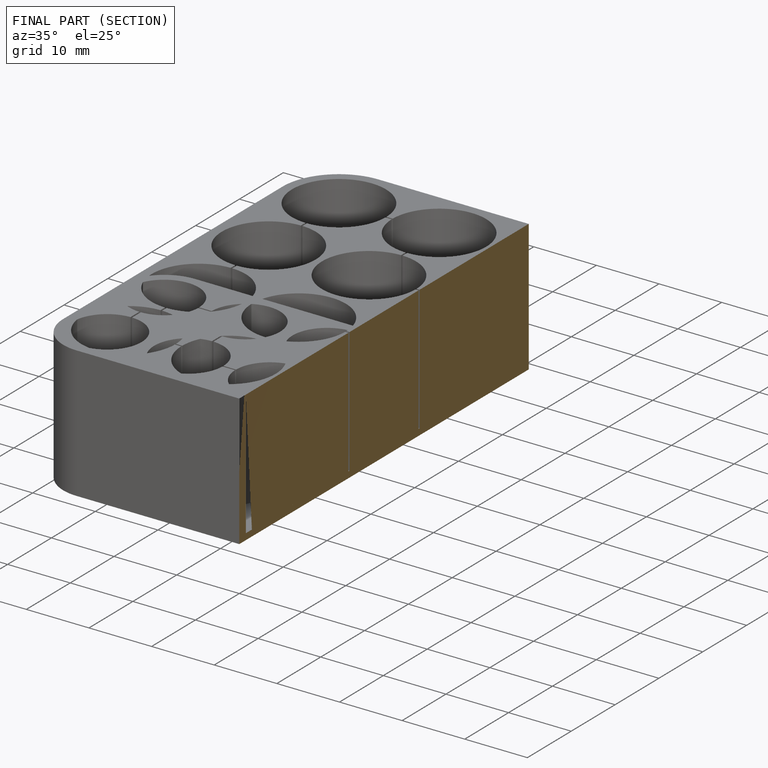
[diagram: finished part — half-section view (interior)]
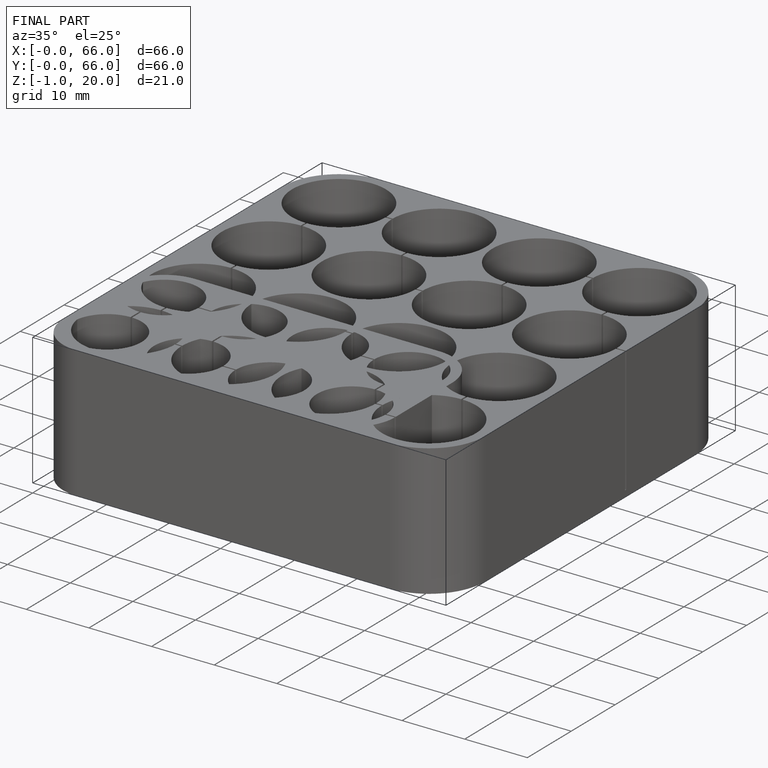
[diagram: finished part — iso view with bounding-box wireframe]
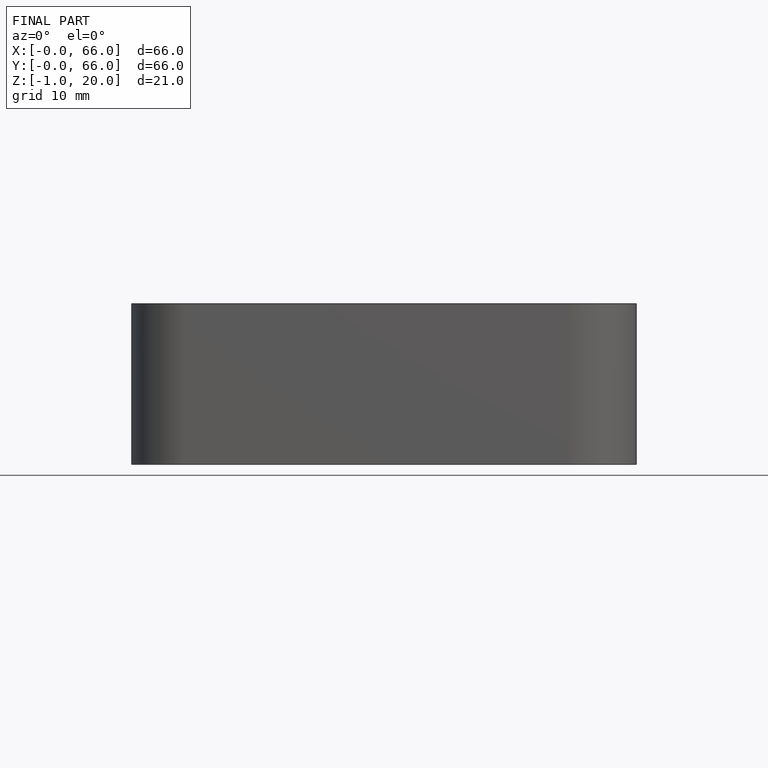
[diagram: finished part — front view with bounding-box wireframe]
